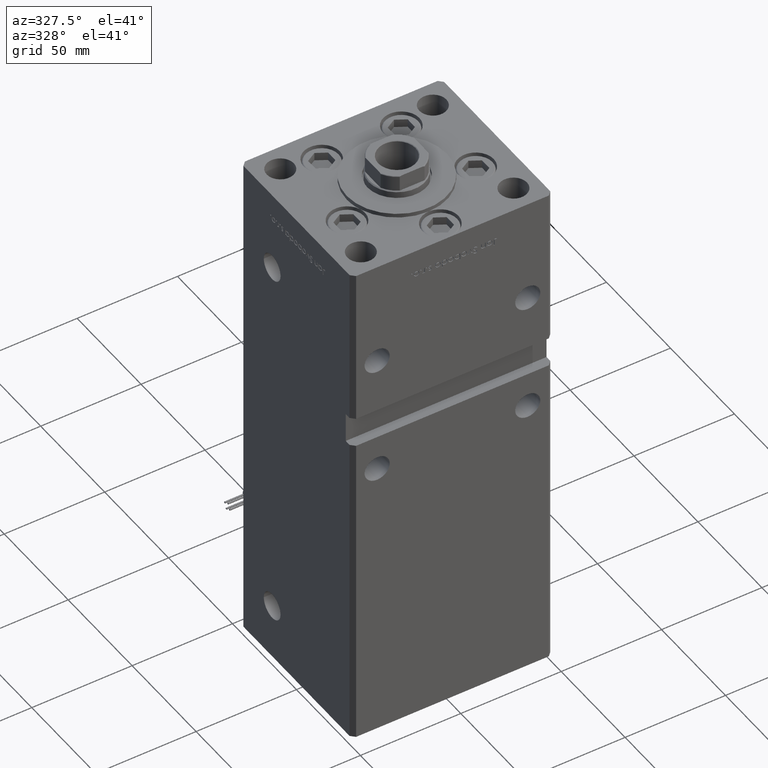
[diagram: clean part render]
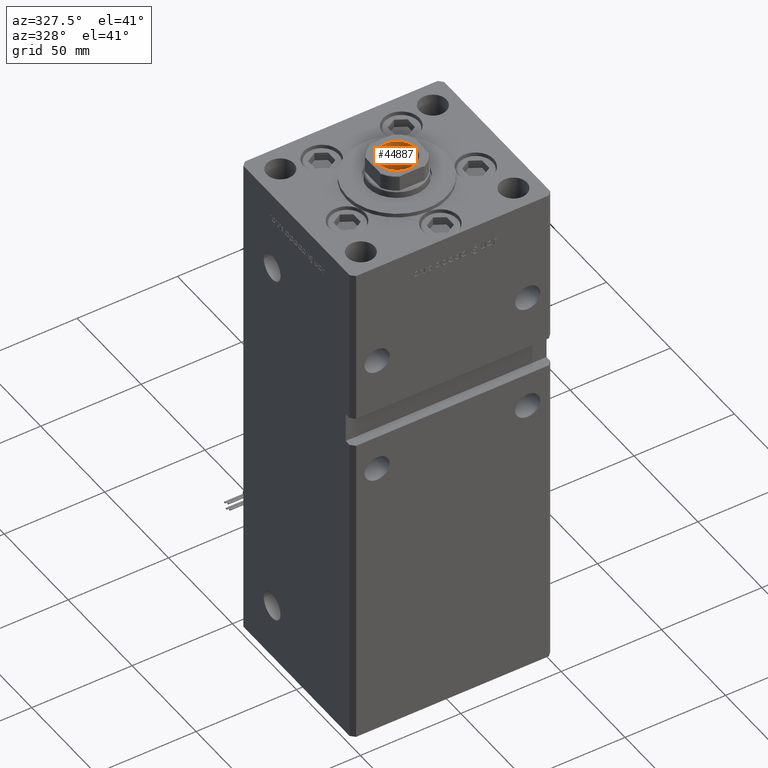
[diagram: same view with one face highlighted and labeled with its STEP entity id]
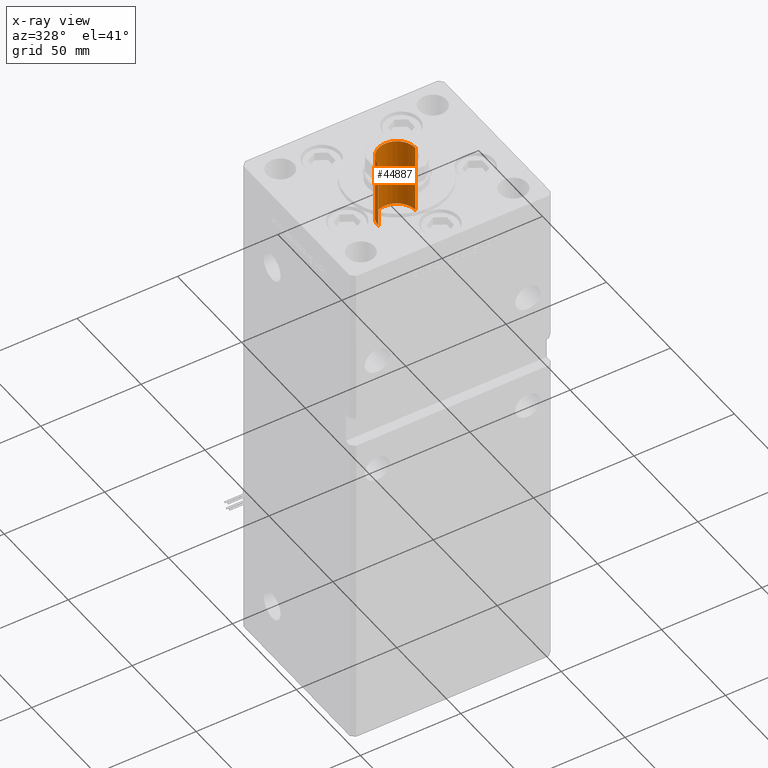
[diagram: x-ray of the same camera — body ghosted, the highlighted face saturated]
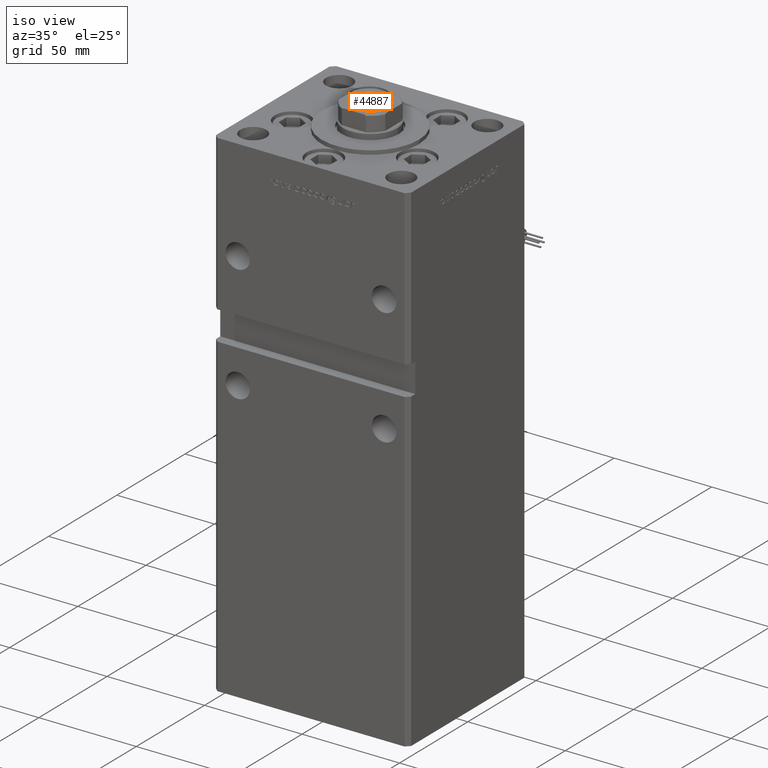
[diagram: same view with one face highlighted and labeled with its STEP entity id]
A machine part, auxiliary view. The second image highlights one B-rep face of the part: STEP entity #44887.
The next image is the same camera in x-ray: the body ghosted, the highlighted face saturated — about 1% of this face is hidden behind the body in this view.
A second angle (iso view) of the same face is appended — the face is thin or edge-on in the first view.
In plain terms, the highlighted cylindrical surface (edge-blend (fillet) strip) has radius 9.25 mm, axis along (0, 0, 1).
Its self-contained STEP definition (entity closure, byte-faithful):
#544 = VECTOR ( 'NONE', #26191, 1000.000000000000000 ) ;
#5482 = VERTEX_POINT ( 'NONE', #9969 ) ;
#7099 = EDGE_LOOP ( 'NONE', ( #31194, #14474, #32719, #33744 ) ) ;
#8336 = AXIS2_PLACEMENT_3D ( 'NONE', #15251, #45403, #40852 ) ;
#8849 = CARTESIAN_POINT ( 'NONE',  ( -9.249999999999996447, 1.132798289211301304E-15, 235.2500000000000284 ) ) ;
#9969 = CARTESIAN_POINT ( 'NONE',  ( 9.249999999999994671, 0.000000000000000000, 200.2500000000000000 ) ) ;
#10539 = AXIS2_PLACEMENT_3D ( 'NONE', #15322, #50303, #19579 ) ;
#10819 = CIRCLE ( 'NONE', #48045, 9.249999999999996447 ) ;
#11058 = FACE_OUTER_BOUND ( 'NONE', #7099, .T. ) ;
#12296 = VERTEX_POINT ( 'NONE', #49775 ) ;
#13681 = DIRECTION ( 'NONE',  ( -0.000000000000000000, -0.000000000000000000, 1.000000000000000000 ) ) ;
#14474 = ORIENTED_EDGE ( 'NONE', *, *, #38416, .F. ) ;
#15251 = CARTESIAN_POINT ( 'NONE',  ( 0.000000000000000000, 0.000000000000000000, 200.2500000000000000 ) ) ;
#15322 = CARTESIAN_POINT ( 'NONE',  ( 0.000000000000000000, 0.000000000000000000, 235.2500000000000284 ) ) ;
#19579 = DIRECTION ( 'NONE',  ( 1.000000000000000000, 0.000000000000000000, 0.000000000000000000 ) ) ;
#21496 = EDGE_CURVE ( 'NONE', #12296, #31944, #54668, .T. ) ;
#26191 = DIRECTION ( 'NONE',  ( -0.000000000000000000, -0.000000000000000000, 1.000000000000000000 ) ) ;
#26967 = DIRECTION ( 'NONE',  ( 1.000000000000000000, 0.000000000000000000, 0.000000000000000000 ) ) ;
#27900 = VECTOR ( 'NONE', #13681, 1000.000000000000000 ) ;
#28082 = CARTESIAN_POINT ( 'NONE',  ( 0.000000000000000000, 0.000000000000000000, 234.9499999999999886 ) ) ;
#30193 = CARTESIAN_POINT ( 'NONE',  ( 9.249999999999996447, 0.000000000000000000, 235.2500000000000284 ) ) ;
#31194 = ORIENTED_EDGE ( 'NONE', *, *, #21496, .F. ) ;
#31944 = VERTEX_POINT ( 'NONE', #35181 ) ;
#32089 = VERTEX_POINT ( 'NONE', #36559 ) ;
#32719 = ORIENTED_EDGE ( 'NONE', *, *, #48277, .T. ) ;
#33744 = ORIENTED_EDGE ( 'NONE', *, *, #53728, .T. ) ;
#35181 = CARTESIAN_POINT ( 'NONE',  ( -9.249999999999996447, 1.132798289211301304E-15, 234.9499999999999886 ) ) ;
#36559 = CARTESIAN_POINT ( 'NONE',  ( 9.249999999999996447, 0.000000000000000000, 234.9499999999999886 ) ) ;
#38416 = EDGE_CURVE ( 'NONE', #5482, #12296, #55561, .T. ) ;
#40852 = DIRECTION ( 'NONE',  ( 1.000000000000000000, 0.000000000000000000, 0.000000000000000000 ) ) ;
#44887 = ADVANCED_FACE ( 'NONE', ( #11058 ), #46603, .F. ) ;
#45403 = DIRECTION ( 'NONE',  ( -0.000000000000000000, -0.000000000000000000, 1.000000000000000000 ) ) ;
#45441 = DIRECTION ( 'NONE',  ( 0.000000000000000000, 0.000000000000000000, 1.000000000000000000 ) ) ;
#46603 = CYLINDRICAL_SURFACE ( 'NONE', #10539, 9.249999999999996447 ) ;
#48045 = AXIS2_PLACEMENT_3D ( 'NONE', #28082, #45441, #26967 ) ;
#48277 = EDGE_CURVE ( 'NONE', #5482, #32089, #52365, .T. ) ;
#49775 = CARTESIAN_POINT ( 'NONE',  ( -9.249999999999994671, 1.132798289211300909E-15, 200.2500000000000000 ) ) ;
#50303 = DIRECTION ( 'NONE',  ( -0.000000000000000000, -0.000000000000000000, 1.000000000000000000 ) ) ;
#52365 = LINE ( 'NONE', #30193, #27900 ) ;
#53728 = EDGE_CURVE ( 'NONE', #32089, #31944, #10819, .T. ) ;
#54668 = LINE ( 'NONE', #8849, #544 ) ;
#55561 = CIRCLE ( 'NONE', #8336, 9.249999999999994671 ) ;